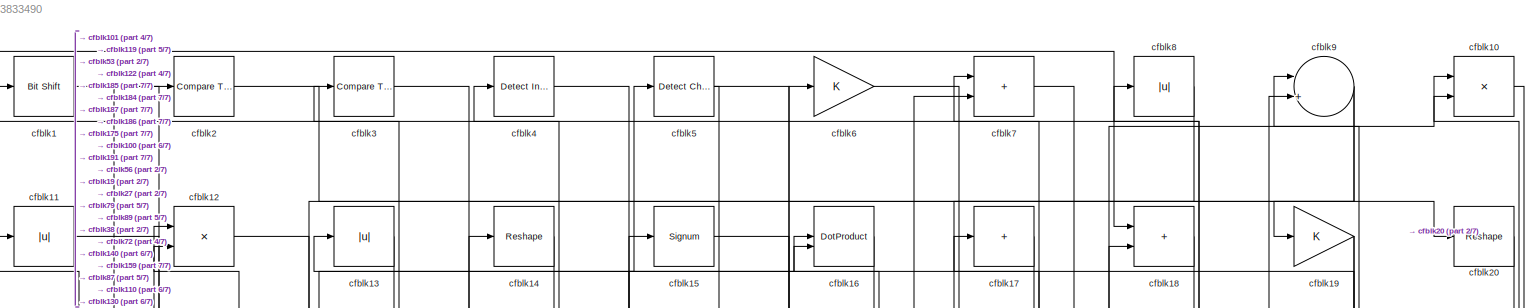
[diagram: root canvas - part 1/7, full width, top band]
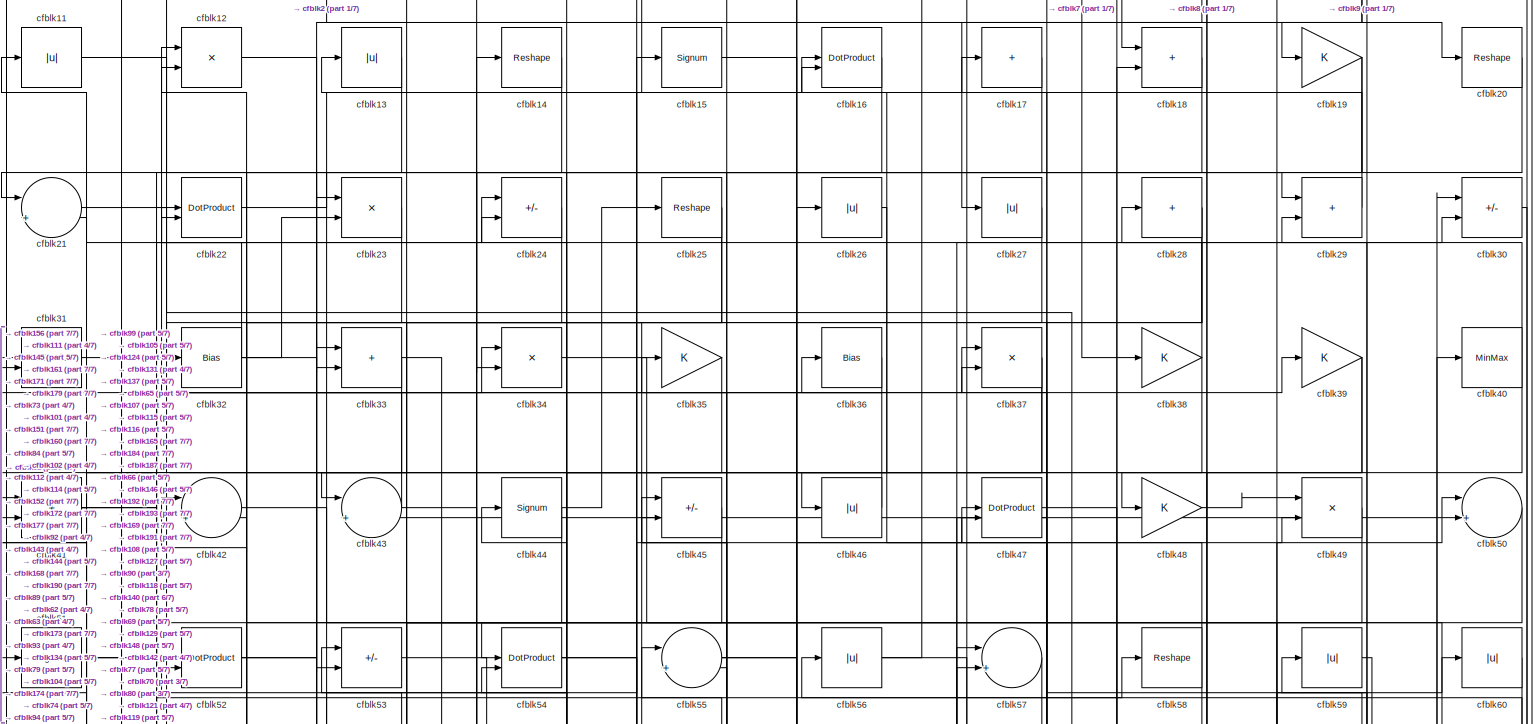
[diagram: root canvas - part 2/7, full width, top band]
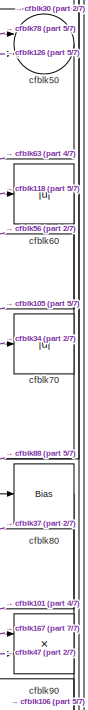
[diagram: root canvas - part 3/7, top right region]
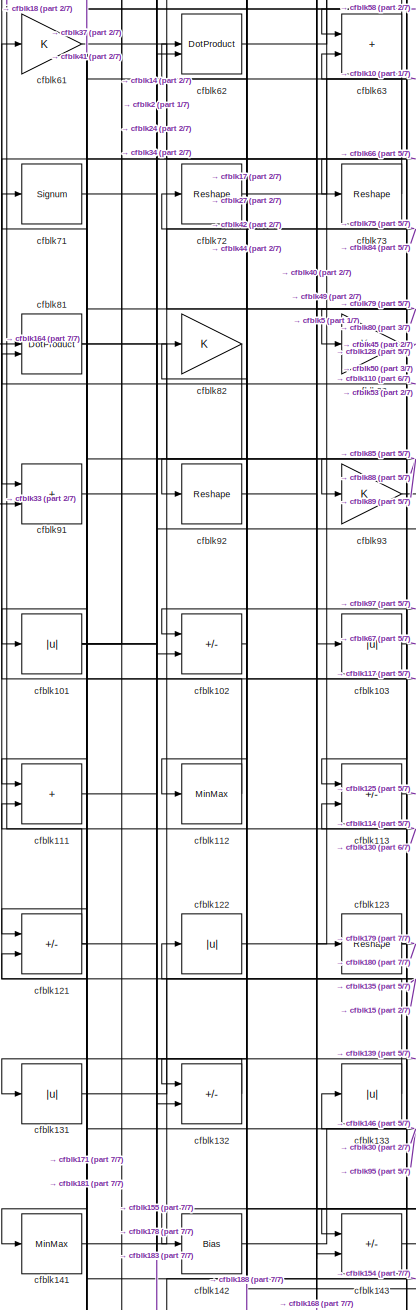
[diagram: root canvas - part 4/7, middle left region]
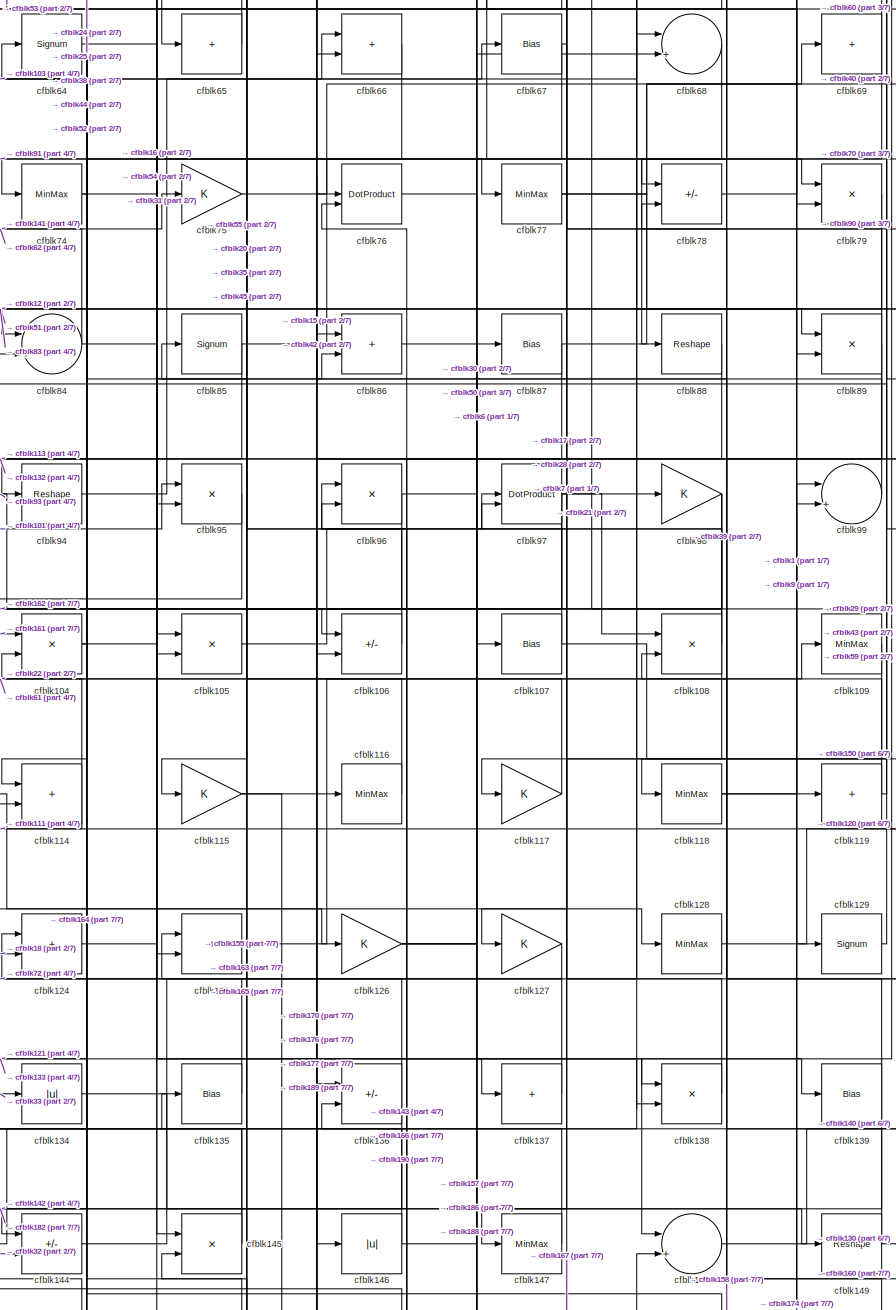
[diagram: root canvas - part 5/7, central region]
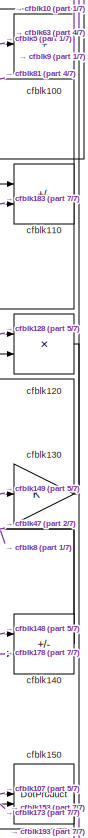
[diagram: root canvas - part 6/7, middle right region]
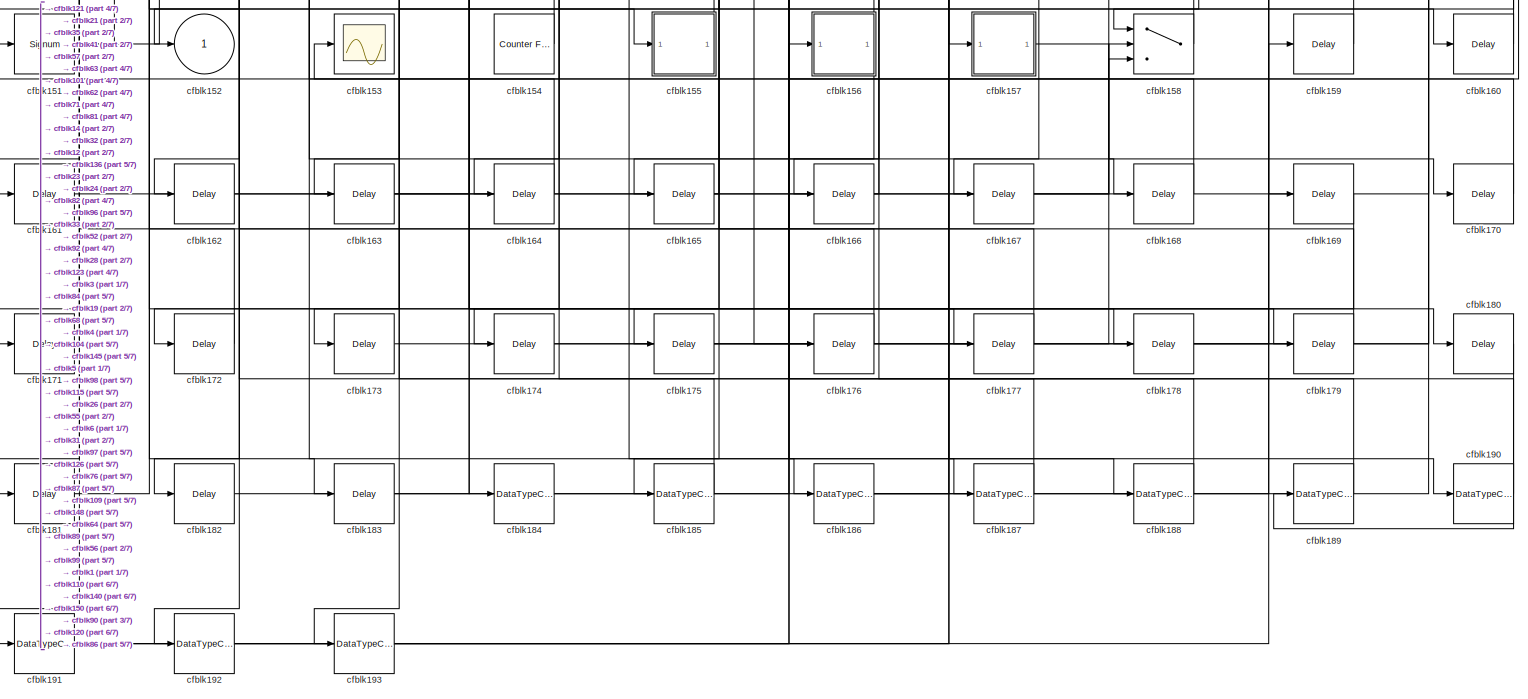
[diagram: root canvas - part 7/7, full width, bottom band]
MODEL slx_286a73833490
KIND model
CONFIG AbsTol = auto
CONFIG EnableMultiTasking = off
CONFIG FixedStep = auto
CONFIG MaxStep = auto
CONFIG MinStep = auto
CONFIG RelTol = 1e-3
CONFIG SampleTimeConstraint = Unconstrained
CONFIG SolverName = VariableStepAuto
CONFIG StartTime = 0.0
CONFIG StopTime = 10.0
BLOCK [Reference] cfblk1  REF=hdlsllib/Logic and Bit
Operations/Bit Shift
  SourceBlock = hdlsllib/Logic and Bit\nOperations/Bit Shift
  SourceType = Bit Shift
BLOCK [Product] cfblk10
  Inputs = */
  RndMeth = Zero
  SaturateOnIntegerOverflow = on
BLOCK [Sum] cfblk100
  IconShape = rectangular
  Inputs = +
BLOCK [Abs] cfblk101
  SaturateOnIntegerOverflow = off
BLOCK [Sum] cfblk102
  IconShape = rectangular
  Inputs = +-
BLOCK [Abs] cfblk103
  SaturateOnIntegerOverflow = off
BLOCK [Product] cfblk104
  Inputs = */
  RndMeth = Zero
  SaturateOnIntegerOverflow = on
BLOCK [Product] cfblk105
  Inputs = */
  RndMeth = Zero
  SaturateOnIntegerOverflow = on
BLOCK [Sum] cfblk106
  IconShape = rectangular
  Inputs = +-
BLOCK [Bias] cfblk107
  Bias = 0.0
  SaturateOnIntegerOverflow = off
BLOCK [Product] cfblk108
  Inputs = */
  RndMeth = Zero
  SaturateOnIntegerOverflow = on
BLOCK [MinMax] cfblk109
BLOCK [Abs] cfblk11
  SaturateOnIntegerOverflow = off
BLOCK [Sum] cfblk110
  IconShape = rectangular
  Inputs = +-
BLOCK [Sum] cfblk111
  IconShape = rectangular
BLOCK [MinMax] cfblk112
BLOCK [Sum] cfblk113
  IconShape = rectangular
  Inputs = +-
BLOCK [Sum] cfblk114
  IconShape = rectangular
BLOCK [Gain] cfblk115
BLOCK [MinMax] cfblk116
BLOCK [Gain] cfblk117
BLOCK [MinMax] cfblk118
BLOCK [Sum] cfblk119
  IconShape = rectangular
  Inputs = +
BLOCK [Product] cfblk12
  Inputs = */
  RndMeth = Zero
  SaturateOnIntegerOverflow = on
BLOCK [Product] cfblk120
  Inputs = */
  RndMeth = Zero
  SaturateOnIntegerOverflow = on
BLOCK [Sum] cfblk121
  IconShape = rectangular
  Inputs = +-
BLOCK [Abs] cfblk122
  SaturateOnIntegerOverflow = off
BLOCK [Reshape] cfblk123
BLOCK [Sum] cfblk124
  IconShape = rectangular
BLOCK [Sum] cfblk125
  IconShape = rectangular
BLOCK [Gain] cfblk126
BLOCK [Gain] cfblk127
BLOCK [MinMax] cfblk128
BLOCK [Signum] cfblk129
BLOCK [Abs] cfblk13
  SaturateOnIntegerOverflow = off
BLOCK [Gain] cfblk130
BLOCK [Abs] cfblk131
  SaturateOnIntegerOverflow = off
BLOCK [Sum] cfblk132
  IconShape = rectangular
  Inputs = +-
BLOCK [Abs] cfblk133
  SaturateOnIntegerOverflow = off
BLOCK [Abs] cfblk134
  SaturateOnIntegerOverflow = off
BLOCK [Bias] cfblk135
  Bias = 0.0
  SaturateOnIntegerOverflow = off
BLOCK [Sum] cfblk136
  IconShape = rectangular
  Inputs = +-
BLOCK [Sum] cfblk137
  IconShape = rectangular
  Inputs = +
BLOCK [Product] cfblk138
  Inputs = */
  RndMeth = Zero
  SaturateOnIntegerOverflow = on
BLOCK [Bias] cfblk139
  Bias = 0.0
  SaturateOnIntegerOverflow = off
BLOCK [Reshape] cfblk14
BLOCK [Sum] cfblk140
  IconShape = rectangular
  Inputs = +-
BLOCK [MinMax] cfblk141
BLOCK [Bias] cfblk142
  Bias = 0.0
  SaturateOnIntegerOverflow = off
BLOCK [Sum] cfblk143
  IconShape = rectangular
  Inputs = +-
BLOCK [Sum] cfblk144
  IconShape = rectangular
  Inputs = +-
BLOCK [Product] cfblk145
  Inputs = */
  RndMeth = Zero
  SaturateOnIntegerOverflow = on
BLOCK [Abs] cfblk146
  SaturateOnIntegerOverflow = off
BLOCK [MinMax] cfblk147
BLOCK [Sum] cfblk148
  Inputs = |++
BLOCK [Reshape] cfblk149
BLOCK [Signum] cfblk15
BLOCK [DotProduct] cfblk150
  OutDataTypeStr = Inherit: Inherit via internal rule
BLOCK [Signum] cfblk151
BLOCK [Outport] cfblk152
  VectorParamsAs1DForOutWhenUnconnected = off
BLOCK [Scope] cfblk153
  Floating = off
  NumInputPorts = 1
  ScopeSpecificationString = Simulink.scopes.TimeScopeBlockCfg('CurrentConfiguration', extmgr.ConfigurationSet(extmgr.Configuration('Core','General UI',true),extmgr.Configuration('Core','Source UI',true),extmgr.Configuration('Sources','WiredSimulink',true,'DataLoggingVariableName','ScopeData2','DataLoggingSaveFormat','Array','DataLoggingLimitDataPoints',true,'DataLoggingDecimation','1'),extmgr.Configuration('Visuals','Time Do...<+868ch>
BLOCK [Reference] cfblk154  REF=hdlsllib/Sources/Counter
Free-Running
  SourceBlock = hdlsllib/Sources/Counter\nFree-Running
  SourceType = Counter Free-Running
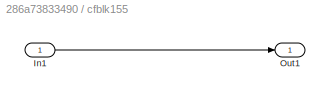
BLOCK [SubSystem] cfblk155
  LibrarySourceBlock = hdlsllib/Ports &\nSubsystems/Subsystem
BLOCK [Inport] cfblk155/In1
BLOCK [Outport] cfblk155/Out1
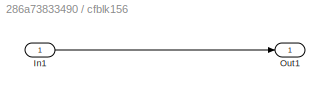
BLOCK [SubSystem] cfblk156
  LibrarySourceBlock = hdlsllib/Ports &\nSubsystems/Subsystem
BLOCK [Inport] cfblk156/In1
BLOCK [Outport] cfblk156/Out1
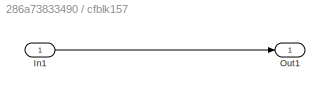
BLOCK [SubSystem] cfblk157
  LibrarySourceBlock = hdlsllib/Ports &\nSubsystems/Subsystem
BLOCK [Inport] cfblk157/In1
BLOCK [Outport] cfblk157/Out1
BLOCK [Switch] cfblk158
  InputSameDT = off
  SaturateOnIntegerOverflow = off
BLOCK [Delay] cfblk159
  InputPortMap = u0
  SampleTime = 1
BLOCK [DotProduct] cfblk16
  OutDataTypeStr = Inherit: Inherit via internal rule
BLOCK [Delay] cfblk160
  InputPortMap = u0
  SampleTime = 1
BLOCK [Delay] cfblk161
  InputPortMap = u0
  SampleTime = 1
BLOCK [Delay] cfblk162
  InputPortMap = u0
  SampleTime = 1
BLOCK [Delay] cfblk163
  InputPortMap = u0
  SampleTime = 1
BLOCK [Delay] cfblk164
  InputPortMap = u0
  SampleTime = 1
BLOCK [Delay] cfblk165
  InputPortMap = u0
  SampleTime = 1
BLOCK [Delay] cfblk166
  InputPortMap = u0
  SampleTime = 1
BLOCK [Delay] cfblk167
  InputPortMap = u0
  SampleTime = 1
BLOCK [Delay] cfblk168
  InputPortMap = u0
  SampleTime = 1
BLOCK [Delay] cfblk169
  InputPortMap = u0
  SampleTime = 1
BLOCK [Sum] cfblk17
  IconShape = rectangular
  Inputs = +
BLOCK [Delay] cfblk170
  InputPortMap = u0
  SampleTime = 1
BLOCK [Delay] cfblk171
  InputPortMap = u0
  SampleTime = 1
BLOCK [Delay] cfblk172
  InputPortMap = u0
  SampleTime = 1
BLOCK [Delay] cfblk173
  InputPortMap = u0
  SampleTime = 1
BLOCK [Delay] cfblk174
  InputPortMap = u0
  SampleTime = 1
BLOCK [Delay] cfblk175
  InputPortMap = u0
  SampleTime = 1
BLOCK [Delay] cfblk176
  InputPortMap = u0
  SampleTime = 1
BLOCK [Delay] cfblk177
  InputPortMap = u0
  SampleTime = 1
BLOCK [Delay] cfblk178
  InputPortMap = u0
  SampleTime = 1
BLOCK [Delay] cfblk179
  InputPortMap = u0
  SampleTime = 1
BLOCK [Sum] cfblk18
  IconShape = rectangular
BLOCK [Delay] cfblk180
  InputPortMap = u0
  SampleTime = 1
BLOCK [Delay] cfblk181
  InputPortMap = u0
  SampleTime = 1
BLOCK [Delay] cfblk182
  InputPortMap = u0
  SampleTime = 1
BLOCK [Delay] cfblk183
  InputPortMap = u0
  SampleTime = 1
BLOCK [DataTypeConversion] cfblk184
  OutDataTypeStr = uint8
  RndMeth = Floor
  SaturateOnIntegerOverflow = off
BLOCK [DataTypeConversion] cfblk185
  OutDataTypeStr = uint8
  RndMeth = Floor
  SaturateOnIntegerOverflow = off
BLOCK [DataTypeConversion] cfblk186
  RndMeth = Floor
  SaturateOnIntegerOverflow = off
BLOCK [DataTypeConversion] cfblk187
  OutDataTypeStr = uint8
  RndMeth = Floor
  SaturateOnIntegerOverflow = off
BLOCK [DataTypeConversion] cfblk188
  OutDataTypeStr = uint8
  RndMeth = Floor
  SaturateOnIntegerOverflow = off
BLOCK [DataTypeConversion] cfblk189
  OutDataTypeStr = uint8
  RndMeth = Floor
  SaturateOnIntegerOverflow = off
BLOCK [Gain] cfblk19
BLOCK [DataTypeConversion] cfblk190
  OutDataTypeStr = uint8
  RndMeth = Floor
  SaturateOnIntegerOverflow = off
BLOCK [DataTypeConversion] cfblk191
  RndMeth = Floor
  SaturateOnIntegerOverflow = off
BLOCK [DataTypeConversion] cfblk192
  OutDataTypeStr = uint8
  RndMeth = Floor
  SaturateOnIntegerOverflow = off
BLOCK [DataTypeConversion] cfblk193
  OutDataTypeStr = uint8
  RndMeth = Floor
  SaturateOnIntegerOverflow = off
BLOCK [Reference] cfblk2  REF=hdlsllib/Logic and Bit
Operations/Compare
To Zero
  SourceBlock = hdlsllib/Logic and Bit\nOperations/Compare\nTo Zero
  SourceType = Compare To Zero
BLOCK [Reshape] cfblk20
BLOCK [Sum] cfblk21
  Inputs = |++
BLOCK [DotProduct] cfblk22
  OutDataTypeStr = Inherit: Inherit via internal rule
BLOCK [Product] cfblk23
  Inputs = */
  RndMeth = Zero
  SaturateOnIntegerOverflow = on
BLOCK [Sum] cfblk24
  IconShape = rectangular
  Inputs = +-
BLOCK [Reshape] cfblk25
BLOCK [Abs] cfblk26
  SaturateOnIntegerOverflow = off
BLOCK [Abs] cfblk27
  SaturateOnIntegerOverflow = off
BLOCK [Sum] cfblk28
  IconShape = rectangular
  Inputs = +
BLOCK [Sum] cfblk29
  IconShape = rectangular
BLOCK [Reference] cfblk3  REF=hdlsllib/Logic and Bit
Operations/Compare
To Constant
  SourceBlock = hdlsllib/Logic and Bit\nOperations/Compare\nTo Constant
  SourceType = Compare To Constant
BLOCK [Sum] cfblk30
  IconShape = rectangular
  Inputs = +-
BLOCK [DotProduct] cfblk31
  OutDataTypeStr = Inherit: Inherit via internal rule
BLOCK [Bias] cfblk32
  Bias = 0.0
  SaturateOnIntegerOverflow = off
BLOCK [Sum] cfblk33
  IconShape = rectangular
BLOCK [Product] cfblk34
  Inputs = */
  RndMeth = Zero
  SaturateOnIntegerOverflow = on
BLOCK [Gain] cfblk35
BLOCK [Bias] cfblk36
  Bias = 0.0
  SaturateOnIntegerOverflow = off
BLOCK [Product] cfblk37
  Inputs = */
  RndMeth = Zero
  SaturateOnIntegerOverflow = on
BLOCK [Gain] cfblk38
BLOCK [Gain] cfblk39
BLOCK [Reference] cfblk4  REF=simulink/Logic and Bit
Operations/Detect
Increase
  LibrarySourceBlock = hdlsllib/Logic and Bit\nOperations/Detect\nIncrease
  SourceBlock = simulink/Logic and Bit\nOperations/Detect\nIncrease
  SourceType = Detect Increase
BLOCK [MinMax] cfblk40
BLOCK [Sum] cfblk41
  IconShape = rectangular
BLOCK [Sum] cfblk42
  Inputs = |++
BLOCK [Sum] cfblk43
  Inputs = |++
BLOCK [Signum] cfblk44
BLOCK [Sum] cfblk45
  IconShape = rectangular
  Inputs = +-
BLOCK [Abs] cfblk46
  SaturateOnIntegerOverflow = off
BLOCK [DotProduct] cfblk47
  OutDataTypeStr = Inherit: Inherit via internal rule
BLOCK [Gain] cfblk48
BLOCK [Product] cfblk49
  Inputs = */
  RndMeth = Zero
  SaturateOnIntegerOverflow = on
BLOCK [Reference] cfblk5  REF=simulink/Logic and Bit
Operations/Detect
Change
  LibrarySourceBlock = hdlsllib/Logic and Bit\nOperations/Detect\nChange
  SourceBlock = simulink/Logic and Bit\nOperations/Detect\nChange
  SourceType = Detect Change
BLOCK [Sum] cfblk50
  Inputs = |++
BLOCK [Signum] cfblk51
BLOCK [DotProduct] cfblk52
  OutDataTypeStr = Inherit: Inherit via internal rule
BLOCK [Sum] cfblk53
  IconShape = rectangular
  Inputs = +-
BLOCK [DotProduct] cfblk54
  OutDataTypeStr = Inherit: Inherit via internal rule
BLOCK [Sum] cfblk55
  Inputs = |++
BLOCK [Abs] cfblk56
  SaturateOnIntegerOverflow = off
BLOCK [Sum] cfblk57
  Inputs = |++
BLOCK [Reshape] cfblk58
BLOCK [Abs] cfblk59
  SaturateOnIntegerOverflow = off
BLOCK [Gain] cfblk6
BLOCK [Abs] cfblk60
  SaturateOnIntegerOverflow = off
BLOCK [Gain] cfblk61
BLOCK [DotProduct] cfblk62
  OutDataTypeStr = Inherit: Inherit via internal rule
BLOCK [Sum] cfblk63
  IconShape = rectangular
BLOCK [Signum] cfblk64
BLOCK [Sum] cfblk65
  IconShape = rectangular
  Inputs = +
BLOCK [Sum] cfblk66
  IconShape = rectangular
BLOCK [Bias] cfblk67
  Bias = 0.0
  SaturateOnIntegerOverflow = off
BLOCK [Sum] cfblk68
  Inputs = |++
BLOCK [Sum] cfblk69
  IconShape = rectangular
  Inputs = +
BLOCK [Sum] cfblk7
  IconShape = rectangular
BLOCK [Abs] cfblk70
  SaturateOnIntegerOverflow = off
BLOCK [Signum] cfblk71
BLOCK [Reshape] cfblk72
BLOCK [Reshape] cfblk73
BLOCK [MinMax] cfblk74
BLOCK [Gain] cfblk75
BLOCK [DotProduct] cfblk76
  OutDataTypeStr = Inherit: Inherit via internal rule
BLOCK [MinMax] cfblk77
BLOCK [Sum] cfblk78
  IconShape = rectangular
  Inputs = +-
BLOCK [Product] cfblk79
  Inputs = */
  RndMeth = Zero
  SaturateOnIntegerOverflow = on
BLOCK [Abs] cfblk8
  SaturateOnIntegerOverflow = off
BLOCK [Bias] cfblk80
  Bias = 0.0
  SaturateOnIntegerOverflow = off
BLOCK [DotProduct] cfblk81
  OutDataTypeStr = Inherit: Inherit via internal rule
BLOCK [Gain] cfblk82
BLOCK [Gain] cfblk83
BLOCK [Sum] cfblk84
  Inputs = |++
BLOCK [Signum] cfblk85
BLOCK [Sum] cfblk86
  IconShape = rectangular
BLOCK [Bias] cfblk87
  Bias = 0.0
  SaturateOnIntegerOverflow = off
BLOCK [Reshape] cfblk88
BLOCK [Product] cfblk89
  Inputs = */
  RndMeth = Zero
  SaturateOnIntegerOverflow = on
BLOCK [Sum] cfblk9
  Inputs = |++
BLOCK [Product] cfblk90
  Inputs = */
  RndMeth = Zero
  SaturateOnIntegerOverflow = on
BLOCK [Sum] cfblk91
  IconShape = rectangular
BLOCK [Reshape] cfblk92
BLOCK [Gain] cfblk93
BLOCK [Reshape] cfblk94
BLOCK [Product] cfblk95
  Inputs = */
  RndMeth = Zero
  SaturateOnIntegerOverflow = on
BLOCK [Product] cfblk96
  Inputs = */
  RndMeth = Zero
  SaturateOnIntegerOverflow = on
BLOCK [DotProduct] cfblk97
  OutDataTypeStr = Inherit: Inherit via internal rule
BLOCK [Gain] cfblk98
BLOCK [Sum] cfblk99
  Inputs = |++
LINE cfblk100:1 -> cfblk9:1
NET cfblk101:1 -> cfblk178:1, cfblk24:2, cfblk2:1, cfblk95:1
LINE cfblk102:1 -> cfblk42:1
LINE cfblk103:1 -> cfblk67:1
NET cfblk104:1 -> cfblk54:2, cfblk86:2
LINE cfblk105:1 -> cfblk97:1
LINE cfblk106:1 -> cfblk96:1
NET cfblk107:1 -> cfblk150:1, cfblk45:2
NET cfblk108:1 -> cfblk117:1, cfblk17:1, cfblk45:1
LINE cfblk109:1 -> cfblk167:1
LINE cfblk10:1 -> cfblk110:1
NET cfblk110:1 -> cfblk120:2, cfblk81:2
LINE cfblk111:1 -> cfblk58:1
LINE cfblk112:1 -> cfblk71:1
LINE cfblk113:1 -> cfblk125:2
NET cfblk114:1 -> cfblk111:2, cfblk22:1
NET cfblk115:1 -> cfblk176:1, cfblk177:1
LINE cfblk116:1 -> cfblk35:1
LINE cfblk117:1 -> cfblk61:1
NET cfblk118:1 -> cfblk129:1, cfblk60:1
NET cfblk119:1 -> cfblk29:2, cfblk44:1
LINE cfblk11:1 -> cfblk33:2
LINE cfblk120:1 -> cfblk153:1
NET cfblk121:1 -> cfblk139:1, cfblk181:1, cfblk18:1
LINE cfblk122:1 -> cfblk5:1
NET cfblk123:1 -> cfblk179:1, cfblk180:1
LINE cfblk124:1 -> cfblk16:1
LINE cfblk125:1 -> cfblk109:1
NET cfblk126:1 -> cfblk157:1, cfblk50:2, cfblk68:2
LINE cfblk127:1 -> cfblk125:1
LINE cfblk128:1 -> cfblk120:1
LINE cfblk129:1 -> cfblk59:1
LINE cfblk12:1 -> cfblk89:1
NET cfblk130:1 -> cfblk10:2, cfblk63:2
LINE cfblk131:1 -> cfblk15:1
LINE cfblk132:1 -> cfblk131:1
LINE cfblk133:1 -> cfblk122:1
LINE cfblk134:1 -> cfblk149:1
LINE cfblk135:1 -> cfblk72:1
NET cfblk136:1 -> cfblk182:1, cfblk85:1
LINE cfblk137:1 -> cfblk124:1
LINE cfblk138:1 -> cfblk97:2
NET cfblk139:1 -> cfblk108:2, cfblk142:1
LINE cfblk13:1 -> cfblk21:1
NET cfblk140:1 -> cfblk47:1, cfblk8:1
LINE cfblk141:1 -> cfblk75:1
LINE cfblk142:1 -> cfblk30:1
LINE cfblk143:1 -> cfblk18:2
LINE cfblk144:1 -> cfblk68:1
NET cfblk145:1 -> cfblk135:1, cfblk51:1
NET cfblk146:1 -> cfblk113:2, cfblk30:2
LINE cfblk147:1 -> cfblk136:2
LINE cfblk148:1 -> cfblk140:1
NET cfblk149:1 -> cfblk130:1, cfblk78:2
LINE cfblk14:1 -> cfblk102:2
LINE cfblk150:1 -> cfblk193:1
NET cfblk151:1 -> cfblk14:1, cfblk32:1
LINE cfblk154:1 -> cfblk121:2
LINE cfblk155/In1:1 -> cfblk155/Out1:1
LINE cfblk155:1 -> cfblk104:2
LINE cfblk156/In1:1 -> cfblk156/Out1:1
NET cfblk156:1 -> cfblk185:1, cfblk31:1
LINE cfblk157/In1:1 -> cfblk157/Out1:1
LINE cfblk157:1 -> cfblk170:1
LINE cfblk158:1 -> cfblk64:1
LINE cfblk159:1 -> cfblk1:1
LINE cfblk15:1 -> cfblk66:2
LINE cfblk160:1 -> cfblk86:1
LINE cfblk161:1 -> cfblk104:1
LINE cfblk162:1 -> cfblk148:2
LINE cfblk163:1 -> cfblk158:2
LINE cfblk164:1 -> cfblk81:1
LINE cfblk165:1 -> cfblk55:2
LINE cfblk166:1 -> cfblk96:2
LINE cfblk167:1 -> cfblk90:1
LINE cfblk168:1 -> cfblk33:1
LINE cfblk169:1 -> cfblk192:1
LINE cfblk16:1 -> cfblk42:2
LINE cfblk170:1 -> cfblk136:1
LINE cfblk171:1 -> cfblk21:2
LINE cfblk172:1 -> cfblk52:1
LINE cfblk173:1 -> cfblk150:2
LINE cfblk174:1 -> cfblk99:2
LINE cfblk175:1 -> cfblk158:3
LINE cfblk176:1 -> cfblk145:2
LINE cfblk177:1 -> cfblk12:2
LINE cfblk178:1 -> cfblk140:2
LINE cfblk179:1 -> cfblk41:2
LINE cfblk17:1 -> cfblk102:1
LINE cfblk180:1 -> cfblk189:1
LINE cfblk181:1 -> cfblk62:2
LINE cfblk182:1 -> cfblk84:2
LINE cfblk183:1 -> cfblk110:2
LINE cfblk184:1 -> cfblk26:1
LINE cfblk185:1 -> cfblk3:1
NET cfblk186:1 -> cfblk87:1, cfblk99:1
LINE cfblk187:1 -> cfblk4:1
LINE cfblk188:1 -> cfblk82:1
LINE cfblk189:1 -> cfblk76:1
LINE cfblk18:1 -> cfblk124:2
LINE cfblk190:1 -> cfblk76:2
NET cfblk191:1 -> cfblk156:1, cfblk159:1, cfblk6:1
LINE cfblk192:1 -> cfblk57:1
LINE cfblk193:1 -> cfblk57:2
NET cfblk19:1 -> cfblk174:1, cfblk34:2
LINE cfblk1:1 -> cfblk119:1
LINE cfblk20:1 -> cfblk115:1
LINE cfblk21:1 -> cfblk118:1
LINE cfblk22:1 -> cfblk29:1
LINE cfblk23:1 -> cfblk152:1
LINE cfblk24:1 -> cfblk172:1
NET cfblk25:1 -> cfblk43:1, cfblk94:1
LINE cfblk26:1 -> cfblk46:1
LINE cfblk27:1 -> cfblk92:1
NET cfblk28:1 -> cfblk127:1, cfblk173:1
LINE cfblk29:1 -> cfblk13:1
LINE cfblk2:1 -> cfblk20:1
LINE cfblk30:1 -> cfblk80:1
LINE cfblk31:1 -> cfblk65:1
NET cfblk32:1 -> cfblk11:1, cfblk144:2, cfblk23:2
NET cfblk33:1 -> cfblk134:1, cfblk91:2
LINE cfblk34:1 -> cfblk70:1
LINE cfblk35:1 -> cfblk161:1
LINE cfblk36:1 -> cfblk31:2
NET cfblk37:1 -> cfblk111:1, cfblk54:1
NET cfblk38:1 -> cfblk28:1, cfblk74:1
NET cfblk39:1 -> cfblk48:1, cfblk78:1
LINE cfblk3:1 -> cfblk184:1
NET cfblk40:1 -> cfblk12:1, cfblk143:2
NET cfblk41:1 -> cfblk151:1, cfblk160:1, cfblk37:1
LINE cfblk42:1 -> cfblk116:1
NET cfblk43:1 -> cfblk114:2, cfblk22:2
NET cfblk44:1 -> cfblk112:1, cfblk25:1
LINE cfblk45:1 -> cfblk93:1
LINE cfblk46:1 -> cfblk36:1
LINE cfblk47:1 -> cfblk90:2
LINE cfblk48:1 -> cfblk49:1
LINE cfblk49:1 -> cfblk73:1
LINE cfblk4:1 -> cfblk186:1
LINE cfblk50:1 -> cfblk63:1
NET cfblk51:1 -> cfblk39:1, cfblk84:1
NET cfblk52:1 -> cfblk190:1, cfblk23:1
LINE cfblk53:1 -> cfblk79:2
NET cfblk54:1 -> cfblk105:1, cfblk137:1
NET cfblk55:1 -> cfblk187:1, cfblk47:2
NET cfblk56:1 -> cfblk169:1, cfblk7:2
LINE cfblk57:1 -> cfblk191:1
NET cfblk58:1 -> cfblk121:1, cfblk16:2
LINE cfblk59:1 -> cfblk148:1
NET cfblk5:1 -> cfblk100:1, cfblk175:1
LINE cfblk60:1 -> cfblk105:2
LINE cfblk61:1 -> cfblk123:1
LINE cfblk62:1 -> cfblk49:2
NET cfblk63:1 -> cfblk171:1, cfblk53:1
LINE cfblk64:1 -> cfblk145:1
LINE cfblk65:1 -> cfblk55:1
LINE cfblk66:1 -> cfblk91:1
NET cfblk67:1 -> cfblk147:1, cfblk95:2
LINE cfblk68:1 -> cfblk164:1
NET cfblk69:1 -> cfblk114:1, cfblk43:2
LINE cfblk6:1 -> cfblk79:1
NET cfblk70:1 -> cfblk56:1, cfblk88:1
LINE cfblk71:1 -> cfblk155:1
LINE cfblk72:1 -> cfblk10:1
LINE cfblk73:1 -> cfblk41:1
NET cfblk74:1 -> cfblk126:1, cfblk24:1
LINE cfblk75:1 -> cfblk77:1
LINE cfblk76:1 -> cfblk188:1
NET cfblk77:1 -> cfblk40:1, cfblk89:2
LINE cfblk78:1 -> cfblk50:1
LINE cfblk79:1 -> cfblk83:1
LINE cfblk7:1 -> cfblk38:1
LINE cfblk80:1 -> cfblk101:1
NET cfblk81:1 -> cfblk103:1, cfblk183:1
LINE cfblk82:1 -> cfblk141:1
LINE cfblk83:1 -> cfblk128:1
NET cfblk84:1 -> cfblk138:2, cfblk62:1
NET cfblk85:1 -> cfblk132:1, cfblk69:1
LINE cfblk86:1 -> cfblk107:1
NET cfblk87:1 -> cfblk106:2, cfblk9:2
LINE cfblk88:1 -> cfblk113:1
NET cfblk89:1 -> cfblk132:2, cfblk158:1, cfblk7:1
LINE cfblk8:1 -> cfblk53:2
NET cfblk90:1 -> cfblk106:1, cfblk37:2
LINE cfblk91:1 -> cfblk34:1
LINE cfblk92:1 -> cfblk168:1
LINE cfblk93:1 -> cfblk146:1
LINE cfblk94:1 -> cfblk66:1
LINE cfblk95:1 -> cfblk133:1
NET cfblk96:1 -> cfblk138:1, cfblk162:1
NET cfblk97:1 -> cfblk108:1, cfblk143:1, cfblk166:1, cfblk98:1
NET cfblk98:1 -> cfblk144:1, cfblk163:1, cfblk165:1
LINE cfblk99:1 -> cfblk52:2
NET cfblk9:1 -> cfblk19:1, cfblk27:1
note: NET lines group one-source signal fan-out (src -> all destinations, sorted); 1:1 wires keep LINE
